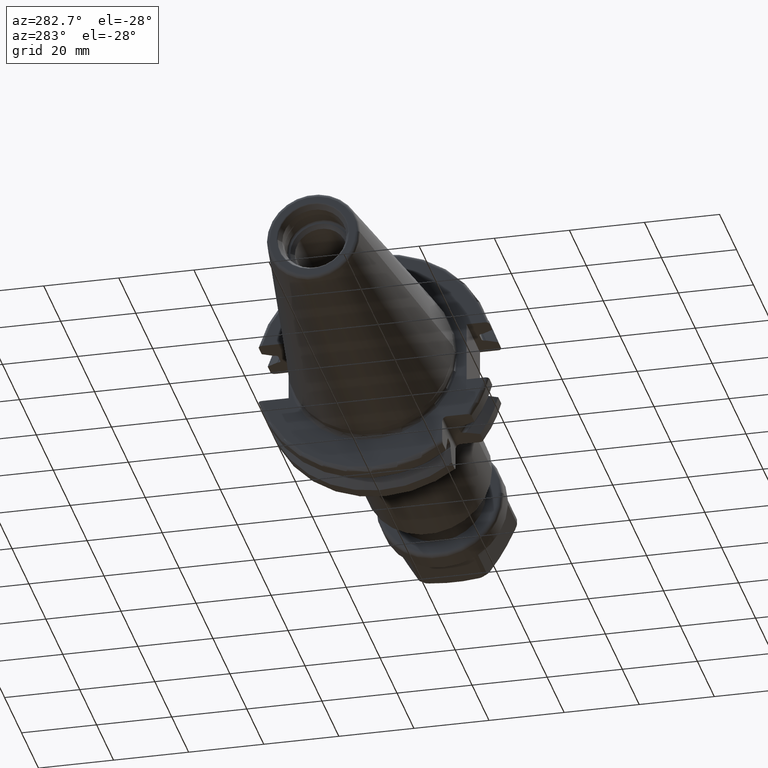
[diagram: clean part render]
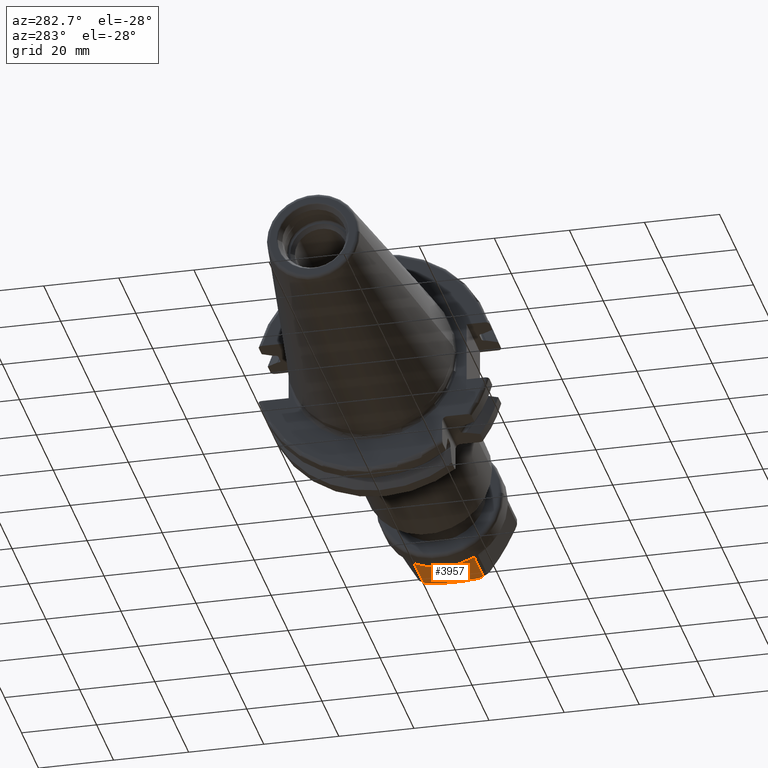
[diagram: same view with one face highlighted and labeled with its STEP entity id]
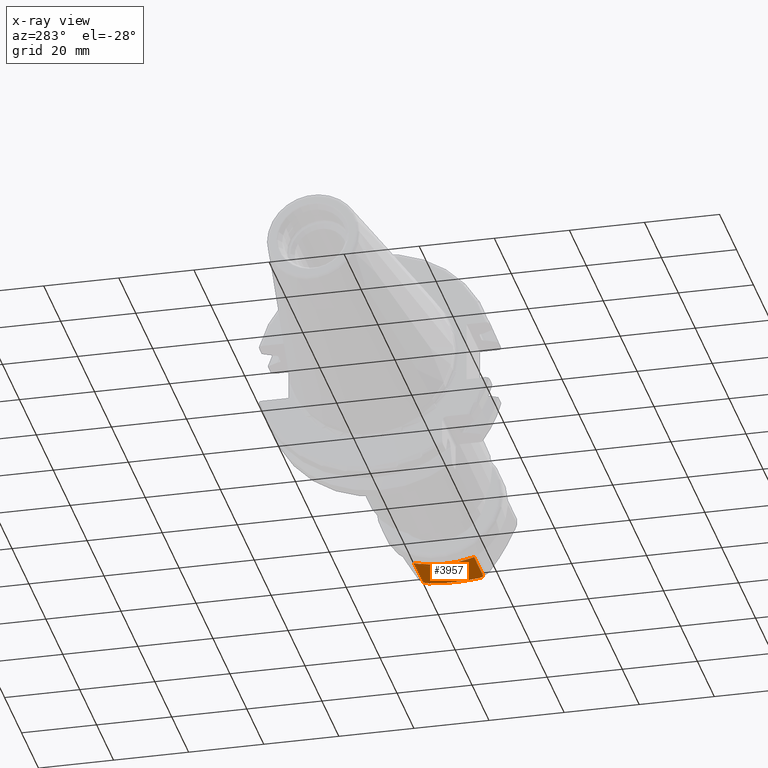
[diagram: x-ray of the same camera — body ghosted, the highlighted face saturated]
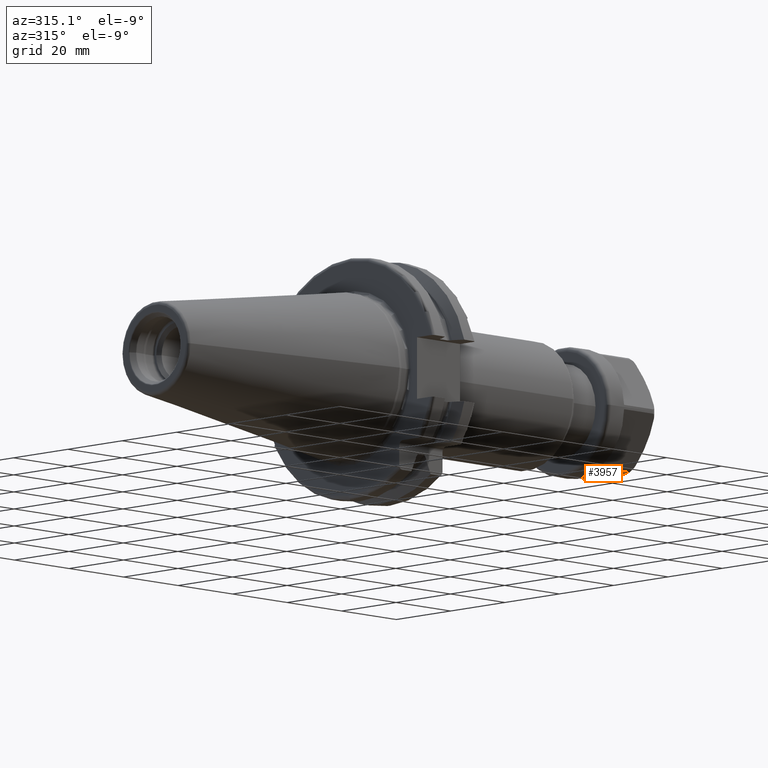
[diagram: same view with one face highlighted and labeled with its STEP entity id]
A machine part, auxiliary view. The second image highlights one B-rep face of the part: STEP entity #3957.
The next image is the same camera in x-ray: the body ghosted, the highlighted face saturated — about 0% of this face is hidden behind the body in this view.
A second angle (auxiliary view) of the same face is appended — the face is thin or edge-on in the first view.
In plain terms, the highlighted planar face has unit normal (0, 0, 1).
Its self-contained STEP definition (entity closure, byte-faithful):
#3200=CARTESIAN_POINT('',(1.762879311067E1,-6.568152327710E0,-1.5E1));
#3201=CARTESIAN_POINT('',(1.783518476881E1,-5.676920146633E0,-1.5E1));
#3202=CARTESIAN_POINT('',(1.817379271881E1,-3.907290139793E0,-1.5E1));
#3203=CARTESIAN_POINT('',(1.843326934202E1,-1.305260671272E0,-1.5E1));
#3204=CARTESIAN_POINT('',(1.843317407038E1,1.306799612845E0,-1.5E1));
#3205=CARTESIAN_POINT('',(1.817365600931E1,3.908043632508E0,-1.5E1));
#3206=CARTESIAN_POINT('',(1.783512110256E1,5.677195067685E0,-1.5E1));
#3207=CARTESIAN_POINT('',(1.762879311067E1,6.568152327710E0,-1.5E1));
#3288=CARTESIAN_POINT('',(1.762879311067E1,6.568152327710E0,-1.5E1));
#3289=CARTESIAN_POINT('',(1.760135930288E1,6.686615896319E0,-1.5E1));
#3290=CARTESIAN_POINT('',(1.753829156841E1,6.919562422553E0,-1.5E1));
#3291=CARTESIAN_POINT('',(1.740404374214E1,7.268447683235E0,-1.5E1));
#3292=CARTESIAN_POINT('',(1.723276370862E1,7.572951749063E0,-1.5E1));
#3293=CARTESIAN_POINT('',(1.702726259196E1,7.811872918453E0,-1.5E1));
#3294=CARTESIAN_POINT('',(1.679442486846E1,7.964403573631E0,-1.5E1));
#3295=CARTESIAN_POINT('',(1.663092243804E1,8.E0,-1.5E1));
#3296=CARTESIAN_POINT('',(1.654626135594E1,8.E0,-1.5E1));
#3308=CARTESIAN_POINT('',(1.654626135594E1,-8.E0,-1.5E1));
#3309=CARTESIAN_POINT('',(1.663133375969E1,-8.E0,-1.5E1));
#3310=CARTESIAN_POINT('',(1.679554974256E1,-7.964122117397E0,-1.5E1));
#3311=CARTESIAN_POINT('',(1.702967586056E1,-7.809862385039E0,-1.5E1));
#3312=CARTESIAN_POINT('',(1.723504960512E1,-7.569565720791E0,-1.5E1));
#3313=CARTESIAN_POINT('',(1.740538646210E1,-7.265348519454E0,-1.5E1));
#3314=CARTESIAN_POINT('',(1.753869894456E1,-6.918091275530E0,-1.5E1));
#3315=CARTESIAN_POINT('',(1.760147975856E1,-6.686095749444E0,-1.5E1));
#3316=CARTESIAN_POINT('',(1.762879311067E1,-6.568152327710E0,-1.5E1));
#3429=CARTESIAN_POINT('',(6.010071585285E0,8.E0,-1.5E1));
#3430=CARTESIAN_POINT('',(6.251536961891E0,7.486862132702E0,-1.5E1));
#3431=CARTESIAN_POINT('',(6.679735917781E0,6.499433665538E0,-1.5E1));
#3432=CARTESIAN_POINT('',(7.167160045054E0,5.147288255829E0,-1.5E1));
#3433=CARTESIAN_POINT('',(7.522681539671E0,3.910656272611E0,-1.5E1));
#3434=CARTESIAN_POINT('',(7.766094592583E0,2.783330816111E0,-1.500000000001E1));
#3435=CARTESIAN_POINT('',(7.917589910616E0,1.759727926737E0,-1.499999999997E1));
#3436=CARTESIAN_POINT('',(7.995729972121E0,8.254980561117E-1,
-1.500000000013E1));
#3437=CARTESIAN_POINT('',(8.017089678906E0,5.846811738375E-7,
-1.499999999953E1));
#3438=CARTESIAN_POINT('',(7.995729245993E0,-8.255142948753E-1,
-1.500000000176E1));
#3439=CARTESIAN_POINT('',(7.917587784957E0,-1.759744643474E0,
-1.499999999344E1));
#3440=CARTESIAN_POINT('',(7.766090386609E0,-2.783352982962E0,
-1.500000002449E1));
#3441=CARTESIAN_POINT('',(7.522674713490E0,-3.910682252810E0,
-1.499999990861E1));
#3442=CARTESIAN_POINT('',(7.167150094838E0,-5.147316726988E0,
-1.500000034109E1));
#3443=CARTESIAN_POINT('',(6.679726769323E0,-6.499455996081E0,
-1.499999872704E1));
#3444=CARTESIAN_POINT('',(6.251530896887E0,-7.486870389601E0,
-1.500000274284E1));
#3445=CARTESIAN_POINT('',(6.010069795969E0,-7.999999403549E0,
-1.500000274284E1));
#3447=DIRECTION('',(1.E0,-5.660973854207E-8,2.603253999531E-7));
#3448=VECTOR('',#3447,1.053619155998E1);
#3449=CARTESIAN_POINT('',(6.010069795969E0,-7.999999403549E0,
-1.500000274284E1));
#3450=LINE('',#3449,#3448);
#3451=DIRECTION('',(-1.E0,0.E0,0.E0));
#3452=VECTOR('',#3451,1.053618977066E1);
#3453=CARTESIAN_POINT('',(1.654626135594E1,8.E0,-1.5E1));
#3454=LINE('',#3453,#3452);
#3680=VERTEX_POINT('',#3200);
#3681=VERTEX_POINT('',#3207);
#3692=VERTEX_POINT('',#3296);
#3693=VERTEX_POINT('',#3308);
#3702=CARTESIAN_POINT('',(6.010015861223E0,8.000026222654E0,-1.500004916947E1));
#3703=CARTESIAN_POINT('',(6.010015861223E0,-8.000025887464E0,
-1.500004854096E1));
#3704=VERTEX_POINT('',#3702);
#3705=VERTEX_POINT('',#3703);
#3943=CARTESIAN_POINT('',(1.9E1,8.660254037844E0,-1.5E1));
#3944=DIRECTION('',(0.E0,0.E0,1.E0));
#3945=DIRECTION('',(0.E0,-1.E0,0.E0));
#3946=AXIS2_PLACEMENT_3D('',#3943,#3944,#3945);
#3947=PLANE('',#3946);
#3949=ORIENTED_EDGE('',*,*,#3948,.T.);
#3950=ORIENTED_EDGE('',*,*,#3796,.T.);
#3951=ORIENTED_EDGE('',*,*,#3845,.T.);
#3952=ORIENTED_EDGE('',*,*,#3750,.T.);
#3953=ORIENTED_EDGE('',*,*,#3832,.T.);
#3954=ORIENTED_EDGE('',*,*,#3800,.T.);
#3955=EDGE_LOOP('',(#3949,#3950,#3951,#3952,#3953,#3954));
#3956=FACE_OUTER_BOUND('',#3955,.F.);
#3957=ADVANCED_FACE('',(#3956),#3947,.F.);
#3208=B_SPLINE_CURVE_WITH_KNOTS('',3,(#3200,#3201,#3202,#3203,#3204,#3205,#3206,
#3207),.UNSPECIFIED.,.F.,.F.,(4,1,1,1,1,4),(0.E0,2.E-1,4.E-1,6.E-1,8.E-1,1.E0),
.UNSPECIFIED.);
#3297=B_SPLINE_CURVE_WITH_KNOTS('',3,(#3288,#3289,#3290,#3291,#3292,#3293,#3294,
#3295,#3296),.UNSPECIFIED.,.F.,.F.,(4,1,1,1,1,1,4),(0.E0,1.666666666667E-1,
3.333333333333E-1,5.E-1,6.666666666667E-1,8.333333333333E-1,1.E0),
.UNSPECIFIED.);
#3317=B_SPLINE_CURVE_WITH_KNOTS('',3,(#3308,#3309,#3310,#3311,#3312,#3313,#3314,
#3315,#3316),.UNSPECIFIED.,.F.,.F.,(4,1,1,1,1,1,4),(0.E0,1.666666666667E-1,
3.333333333333E-1,5.E-1,6.666666666667E-1,8.333333333333E-1,1.E0),
.UNSPECIFIED.);
#3446=B_SPLINE_CURVE_WITH_KNOTS('',3,(#3429,#3430,#3431,#3432,#3433,#3434,#3435,
#3436,#3437,#3438,#3439,#3440,#3441,#3442,#3443,#3444,#3445),.UNSPECIFIED.,.F.,
.F.,(4,1,1,1,1,1,1,1,1,1,1,1,1,1,4),(0.E0,7.142857142857E-2,1.428571428571E-1,
2.142857142857E-1,2.857142857143E-1,3.571428571429E-1,4.285714285714E-1,5.E-1,
5.714285714286E-1,6.428571428571E-1,7.142857142857E-1,7.857142857143E-1,
8.571428571429E-1,9.285714285714E-1,1.E0),.UNSPECIFIED.);
#3750=EDGE_CURVE('',#3680,#3681,#3208,.T.);
#3796=EDGE_CURVE('',#3705,#3693,#3450,.T.);
#3800=EDGE_CURVE('',#3692,#3704,#3454,.T.);
#3832=EDGE_CURVE('',#3681,#3692,#3297,.T.);
#3845=EDGE_CURVE('',#3693,#3680,#3317,.T.);
#3948=EDGE_CURVE('',#3704,#3705,#3446,.T.);